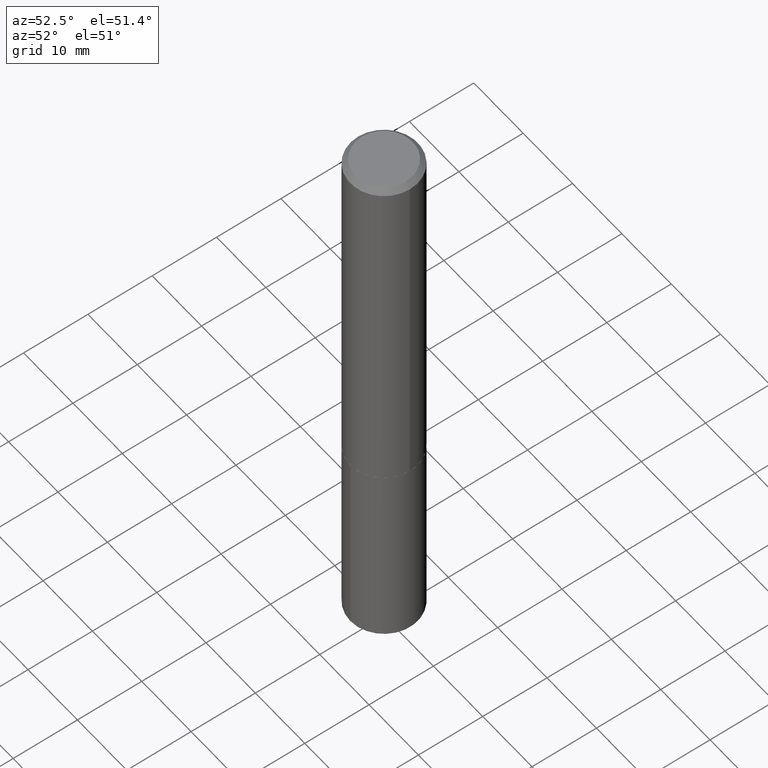
[diagram: clean part render]
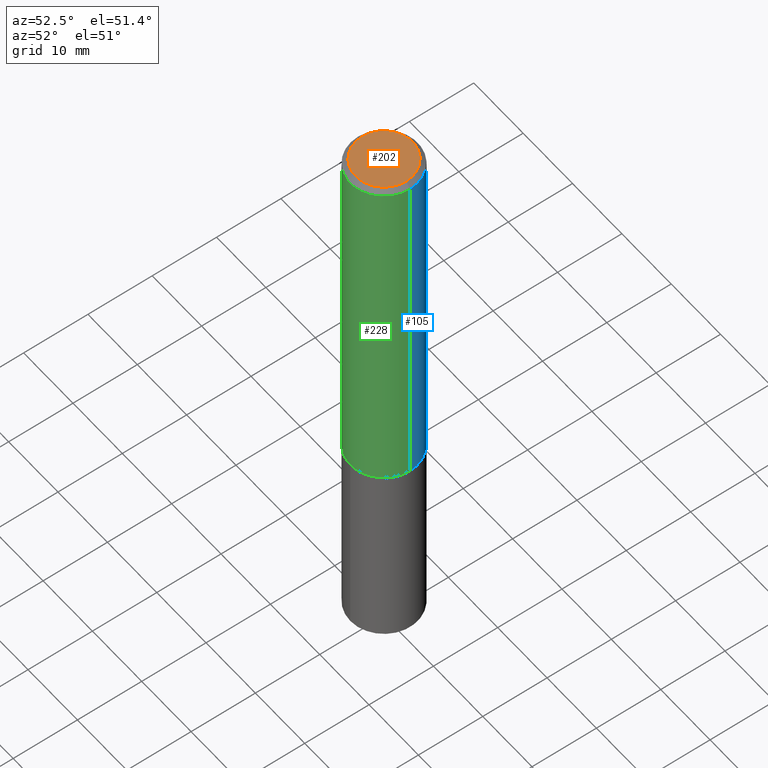
[diagram: same view with three faces highlighted in distinct colors, each labeled with its STEP entity id]
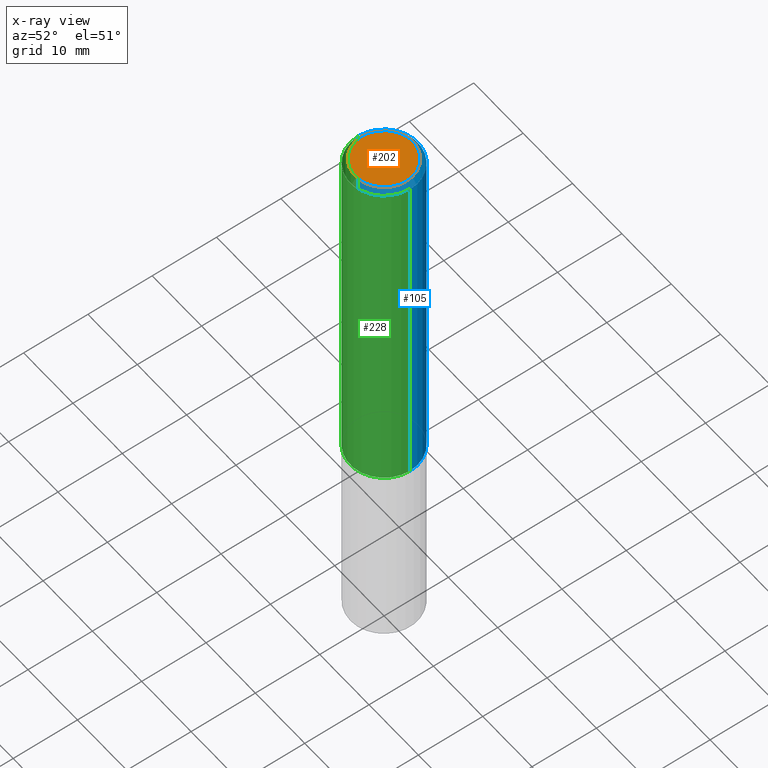
[diagram: x-ray of the same camera — body ghosted, the three highlighted faces saturated]
A machine part, auxiliary view with three faces highlighted in distinct colors.
The next image is the same camera in x-ray (body ghosted, the three faces saturated) — at least one of them is partly hidden behind the body in this view.
Their STEP definitions:

[orange] entity #202 — the highlighted planar face has unit normal (0, -0, -1).
#5 = FACE_OUTER_BOUND ( 'NONE', #359, .T. ) ;
#40 = DIRECTION ( 'NONE',  ( 2.438088387897960049E-29, -3.491481338843145188E-15, -1.000000000000000000 ) ) ;
#57 = CARTESIAN_POINT ( 'NONE',  ( -2.949913012720677210E-47, 4.211693974208505230E-33, 1.206277097160138851E-18 ) ) ;
#88 = EDGE_CURVE ( 'NONE', #345, #354, #205, .T. ) ;
#90 = DIRECTION ( 'NONE',  ( 1.000000000000000000, -6.982962677686267499E-15, 4.876214437063800301E-29 ) ) ;
#109 = ORIENTED_EDGE ( 'NONE', *, *, #88, .T. ) ;
#111 = DIRECTION ( 'NONE',  ( -2.445468806185136597E-29, 3.491481338843145583E-15, 1.000000000000000000 ) ) ;
#120 = CIRCLE ( 'NONE', #346, 0.1754499999999999948 ) ;
#132 = EDGE_CURVE ( 'NONE', #354, #345, #120, .T. ) ;
#148 = CARTESIAN_POINT ( 'NONE',  ( -1.474956506360338605E-47, 2.105846987104252615E-33, 6.031385485800694257E-19 ) ) ;
#165 = DIRECTION ( 'NONE',  ( -2.445468806185136597E-29, 3.491481338843145583E-15, 1.000000000000000000 ) ) ;
#179 = DIRECTION ( 'NONE',  ( -1.000000000000000000, 6.982962677686265922E-15, -4.876176775795935793E-29 ) ) ;
#202 = ADVANCED_FACE ( 'NONE', ( #5 ), #312, .F. ) ;
#205 = CIRCLE ( 'NONE', #260, 0.1754499999999999948 ) ;
#207 = DIRECTION ( 'NONE',  ( 1.000000000000000000, -6.982962677686267499E-15, 4.876214437063800301E-29 ) ) ;
#231 = CARTESIAN_POINT ( 'NONE',  ( -2.949913012720677210E-47, 4.211693974208505230E-33, 1.206277097160138851E-18 ) ) ;
#250 = AXIS2_PLACEMENT_3D ( 'NONE', #148, #40, #179 ) ;
#260 = AXIS2_PLACEMENT_3D ( 'NONE', #231, #111, #207 ) ;
#284 = CARTESIAN_POINT ( 'NONE',  ( 0.1754499999999999948, -1.365424050843619950E-15, 1.206277097169196885E-18 ) ) ;
#312 = PLANE ( 'NONE',  #250 ) ;
#326 = ORIENTED_EDGE ( 'NONE', *, *, #132, .T. ) ;
#345 = VERTEX_POINT ( 'NONE', #284 ) ;
#346 = AXIS2_PLACEMENT_3D ( 'NONE', #57, #165, #90 ) ;
#354 = VERTEX_POINT ( 'NONE', #360 ) ;
#359 = EDGE_LOOP ( 'NONE', ( #326, #109 ) ) ;
#360 = CARTESIAN_POINT ( 'NONE',  ( -0.1754499999999999948, 1.279715197719478945E-15, 1.206277097151380300E-18 ) ) ;

[blue] entity #105 — the highlighted cylindrical surface (partial cylindrical patch) has radius 5.2502 mm, axis along (-0, 0, 1).
#9 = EDGE_CURVE ( 'NONE', #365, #387, #270, .T. ) ;
#25 = CARTESIAN_POINT ( 'NONE',  ( -0.2067000000000002724, -6.296013514637141815E-15, -2.223899999999999544 ) ) ;
#41 = CARTESIAN_POINT ( 'NONE',  ( 7.642090019328603538E-31, -1.091087918388490390E-16, -0.03125000000000021511 ) ) ;
#43 = DIRECTION ( 'NONE',  ( -2.445468806185136597E-29, 3.491481338843145583E-15, 1.000000000000000000 ) ) ;
#46 = CARTESIAN_POINT ( 'NONE',  ( 0.2067000000000000226, -1.552487177316600316E-15, -0.03125000000000021511 ) ) ;
#53 = AXIS2_PLACEMENT_3D ( 'NONE', #324, #268, #261 ) ;
#69 = ORIENTED_EDGE ( 'NONE', *, *, #9, .F. ) ;
#71 = EDGE_CURVE ( 'NONE', #365, #348, #361, .T. ) ;
#77 = VERTEX_POINT ( 'NONE', #238 ) ;
#81 = CARTESIAN_POINT ( 'NONE',  ( 5.438478078075124092E-29, -7.764705349453270440E-15, -2.223899999999999544 ) ) ;
#85 = CARTESIAN_POINT ( 'NONE',  ( 0.2067000000000002724, -9.208083734931024811E-15, -2.223899999999999544 ) ) ;
#92 = DIRECTION ( 'NONE',  ( -2.445468806185136877E-29, 3.491481338843145188E-15, 1.000000000000000000 ) ) ;
#94 = ORIENTED_EDGE ( 'NONE', *, *, #338, .F. ) ;
#105 = ADVANCED_FACE ( 'NONE', ( #298 ), #325, .T. ) ;
#113 = ORIENTED_EDGE ( 'NONE', *, *, #259, .T. ) ;
#119 = DIRECTION ( 'NONE',  ( -2.445468806185136597E-29, 3.491481338843145583E-15, 1.000000000000000000 ) ) ;
#155 = DIRECTION ( 'NONE',  ( 1.000000000000000000, -6.982962677686265133E-15, 0.000000000000000000 ) ) ;
#162 = AXIS2_PLACEMENT_3D ( 'NONE', #41, #43, #155 ) ;
#172 = DIRECTION ( 'NONE',  ( 1.000000000000000000, -6.982962677686266711E-15, 0.000000000000000000 ) ) ;
#173 = VECTOR ( 'NONE', #92, 39.37007874015748143 ) ;
#189 = DIRECTION ( 'NONE',  ( -2.445468806185136877E-29, 3.491481338843145188E-15, 1.000000000000000000 ) ) ;
#211 = AXIS2_PLACEMENT_3D ( 'NONE', #81, #119, #172 ) ;
#238 = CARTESIAN_POINT ( 'NONE',  ( -0.2067000000000000226, -2.468215235829930751E-15, -0.03125000000000021511 ) ) ;
#259 = EDGE_CURVE ( 'NONE', #348, #77, #279, .T. ) ;
#261 = DIRECTION ( 'NONE',  ( 1.000000000000000000, -6.982962677686266711E-15, 4.876176775795936914E-29 ) ) ;
#268 = DIRECTION ( 'NONE',  ( -2.445468806185136597E-29, 3.491481338843145583E-15, 1.000000000000000000 ) ) ;
#270 = LINE ( 'NONE', #274, #173 ) ;
#274 = CARTESIAN_POINT ( 'NONE',  ( 0.2067000000000001336, -1.443378385477752202E-15, 1.007905739557020761E-29 ) ) ;
#279 = LINE ( 'NONE', #285, #383 ) ;
#285 = CARTESIAN_POINT ( 'NONE',  ( -0.2067000000000001336, 1.468691834816128034E-15, -1.016743883155689846E-29 ) ) ;
#298 = FACE_OUTER_BOUND ( 'NONE', #300, .T. ) ;
#300 = EDGE_LOOP ( 'NONE', ( #377, #113, #94, #69 ) ) ;
#319 = CIRCLE ( 'NONE', #162, 0.2067000000000000226 ) ;
#324 = CARTESIAN_POINT ( 'NONE',  ( 0.000000000000000000, 0.000000000000000000, 0.000000000000000000 ) ) ;
#325 = CYLINDRICAL_SURFACE ( 'NONE', #53, 0.2067000000000001336 ) ;
#338 = EDGE_CURVE ( 'NONE', #387, #77, #319, .T. ) ;
#348 = VERTEX_POINT ( 'NONE', #25 ) ;
#361 = CIRCLE ( 'NONE', #211, 0.2067000000000002724 ) ;
#365 = VERTEX_POINT ( 'NONE', #85 ) ;
#377 = ORIENTED_EDGE ( 'NONE', *, *, #71, .T. ) ;
#383 = VECTOR ( 'NONE', #189, 39.37007874015748143 ) ;
#387 = VERTEX_POINT ( 'NONE', #46 ) ;

[green] entity #228 — the highlighted cylindrical surface (partial cylindrical patch) has radius 5.2502 mm, axis along (-0, 0, 1).
#9 = EDGE_CURVE ( 'NONE', #365, #387, #270, .T. ) ;
#13 = DIRECTION ( 'NONE',  ( 1.000000000000000000, -6.982962677686266711E-15, 4.876176775795936914E-29 ) ) ;
#25 = CARTESIAN_POINT ( 'NONE',  ( -0.2067000000000002724, -6.296013514637141815E-15, -2.223899999999999544 ) ) ;
#33 = ORIENTED_EDGE ( 'NONE', *, *, #9, .T. ) ;
#39 = FACE_OUTER_BOUND ( 'NONE', #135, .T. ) ;
#46 = CARTESIAN_POINT ( 'NONE',  ( 0.2067000000000000226, -1.552487177316600316E-15, -0.03125000000000021511 ) ) ;
#70 = CYLINDRICAL_SURFACE ( 'NONE', #328, 0.2067000000000001336 ) ;
#77 = VERTEX_POINT ( 'NONE', #238 ) ;
#80 = AXIS2_PLACEMENT_3D ( 'NONE', #375, #102, #340 ) ;
#85 = CARTESIAN_POINT ( 'NONE',  ( 0.2067000000000002724, -9.208083734931024811E-15, -2.223899999999999544 ) ) ;
#92 = DIRECTION ( 'NONE',  ( -2.445468806185136877E-29, 3.491481338843145188E-15, 1.000000000000000000 ) ) ;
#97 = DIRECTION ( 'NONE',  ( -2.445468806185136597E-29, 3.491481338843145583E-15, 1.000000000000000000 ) ) ;
#102 = DIRECTION ( 'NONE',  ( -2.445468806185136597E-29, 3.491481338843145583E-15, 1.000000000000000000 ) ) ;
#108 = ORIENTED_EDGE ( 'NONE', *, *, #269, .T. ) ;
#126 = CARTESIAN_POINT ( 'NONE',  ( 5.438478078075124092E-29, -7.764705349453270440E-15, -2.223899999999999544 ) ) ;
#129 = CIRCLE ( 'NONE', #282, 0.2067000000000002724 ) ;
#135 = EDGE_LOOP ( 'NONE', ( #265, #108, #33, #181 ) ) ;
#173 = VECTOR ( 'NONE', #92, 39.37007874015748143 ) ;
#181 = ORIENTED_EDGE ( 'NONE', *, *, #309, .F. ) ;
#189 = DIRECTION ( 'NONE',  ( -2.445468806185136877E-29, 3.491481338843145188E-15, 1.000000000000000000 ) ) ;
#213 = CIRCLE ( 'NONE', #80, 0.2067000000000000226 ) ;
#228 = ADVANCED_FACE ( 'NONE', ( #39 ), #70, .T. ) ;
#238 = CARTESIAN_POINT ( 'NONE',  ( -0.2067000000000000226, -2.468215235829930751E-15, -0.03125000000000021511 ) ) ;
#249 = CARTESIAN_POINT ( 'NONE',  ( 0.000000000000000000, 0.000000000000000000, 0.000000000000000000 ) ) ;
#253 = DIRECTION ( 'NONE',  ( 1.000000000000000000, -6.982962677686266711E-15, 0.000000000000000000 ) ) ;
#259 = EDGE_CURVE ( 'NONE', #348, #77, #279, .T. ) ;
#265 = ORIENTED_EDGE ( 'NONE', *, *, #259, .F. ) ;
#269 = EDGE_CURVE ( 'NONE', #348, #365, #129, .T. ) ;
#270 = LINE ( 'NONE', #274, #173 ) ;
#274 = CARTESIAN_POINT ( 'NONE',  ( 0.2067000000000001336, -1.443378385477752202E-15, 1.007905739557020761E-29 ) ) ;
#279 = LINE ( 'NONE', #285, #383 ) ;
#282 = AXIS2_PLACEMENT_3D ( 'NONE', #126, #310, #253 ) ;
#285 = CARTESIAN_POINT ( 'NONE',  ( -0.2067000000000001336, 1.468691834816128034E-15, -1.016743883155689846E-29 ) ) ;
#309 = EDGE_CURVE ( 'NONE', #77, #387, #213, .T. ) ;
#310 = DIRECTION ( 'NONE',  ( -2.445468806185136597E-29, 3.491481338843145583E-15, 1.000000000000000000 ) ) ;
#328 = AXIS2_PLACEMENT_3D ( 'NONE', #249, #97, #13 ) ;
#340 = DIRECTION ( 'NONE',  ( 1.000000000000000000, -6.982962677686265133E-15, 0.000000000000000000 ) ) ;
#348 = VERTEX_POINT ( 'NONE', #25 ) ;
#365 = VERTEX_POINT ( 'NONE', #85 ) ;
#375 = CARTESIAN_POINT ( 'NONE',  ( 7.642090019328603538E-31, -1.091087918388490390E-16, -0.03125000000000021511 ) ) ;
#383 = VECTOR ( 'NONE', #189, 39.37007874015748143 ) ;
#387 = VERTEX_POINT ( 'NONE', #46 ) ;